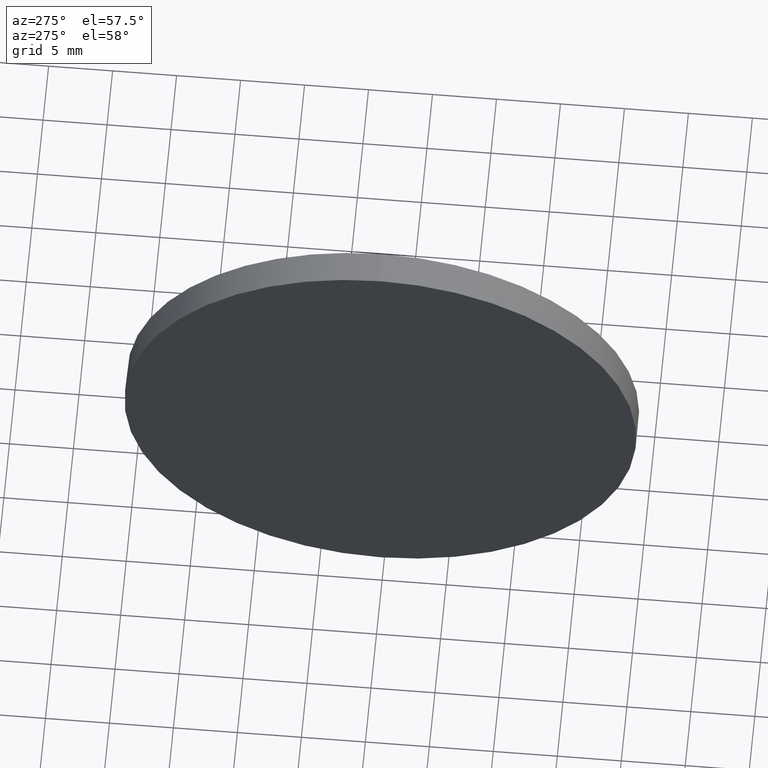
[diagram: clean part render]
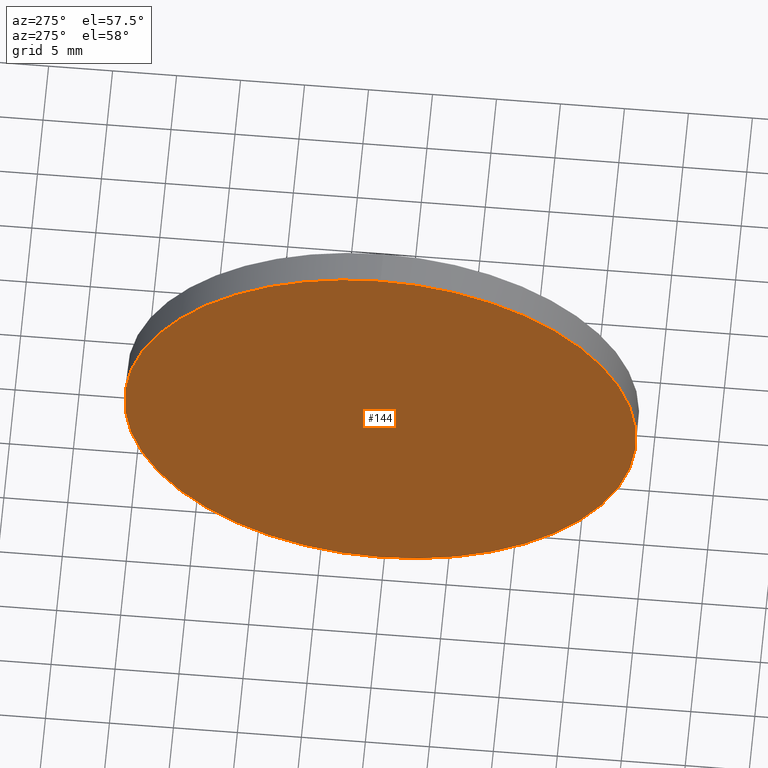
[diagram: same view with one face highlighted and labeled with its STEP entity id]
A machine part, auxiliary view. The second image highlights one B-rep face of the part: STEP entity #144.
In plain terms, the highlighted planar face has unit normal (1, 0, 0).
Its self-contained STEP definition (entity closure, byte-faithful):
#7 = ORIENTED_EDGE ( 'NONE', *, *, #108, .T. ) ;
#25 = DIRECTION ( 'NONE',  ( 1.000000000000000000, 0.0000000000000000000, 0.0000000000000000000 ) ) ;
#33 = CARTESIAN_POINT ( 'NONE',  ( 561.5452585807870500, 125.2757761791659600, 20.00000000000001800 ) ) ;
#44 = DIRECTION ( 'NONE',  ( 0.0000000000000000000, 0.0000000000000000000, 1.000000000000000000 ) ) ;
#46 = AXIS2_PLACEMENT_3D ( 'NONE', #125, #165, #44 ) ;
#51 = ORIENTED_EDGE ( 'NONE', *, *, #136, .T. ) ;
#52 = CARTESIAN_POINT ( 'NONE',  ( 561.5452585807870500, 125.2757761791659600, -20.00000000000001800 ) ) ;
#61 = FACE_OUTER_BOUND ( 'NONE', #117, .T. ) ;
#80 = AXIS2_PLACEMENT_3D ( 'NONE', #110, #25, #179 ) ;
#81 = VERTEX_POINT ( 'NONE', #33 ) ;
#82 = VERTEX_POINT ( 'NONE', #52 ) ;
#92 = CIRCLE ( 'NONE', #161, 20.00000000000001800 ) ;
#107 = DIRECTION ( 'NONE',  ( -1.000000000000000000, -0.0000000000000000000, -0.0000000000000000000 ) ) ;
#108 = EDGE_CURVE ( 'NONE', #81, #82, #92, .T. ) ;
#110 = CARTESIAN_POINT ( 'NONE',  ( 561.5452585807870500, 125.2757761791659600, 0.0000000000000000000 ) ) ;
#117 = EDGE_LOOP ( 'NONE', ( #7, #51 ) ) ;
#122 = DIRECTION ( 'NONE',  ( 0.0000000000000000000, 0.0000000000000000000, 1.000000000000000000 ) ) ;
#125 = CARTESIAN_POINT ( 'NONE',  ( 561.5452585807870500, 125.2757761791659600, 0.0000000000000000000 ) ) ;
#131 = CARTESIAN_POINT ( 'NONE',  ( 561.5452585807870500, 125.2757761791659600, 0.0000000000000000000 ) ) ;
#135 = PLANE ( 'NONE',  #80 ) ;
#136 = EDGE_CURVE ( 'NONE', #82, #81, #185, .T. ) ;
#144 = ADVANCED_FACE ( 'NONE', ( #61 ), #135, .F. ) ;
#161 = AXIS2_PLACEMENT_3D ( 'NONE', #131, #107, #122 ) ;
#165 = DIRECTION ( 'NONE',  ( -1.000000000000000000, -0.0000000000000000000, -0.0000000000000000000 ) ) ;
#179 = DIRECTION ( 'NONE',  ( 0.0000000000000000000, 0.0000000000000000000, -1.000000000000000000 ) ) ;
#185 = CIRCLE ( 'NONE', #46, 20.00000000000001800 ) ;